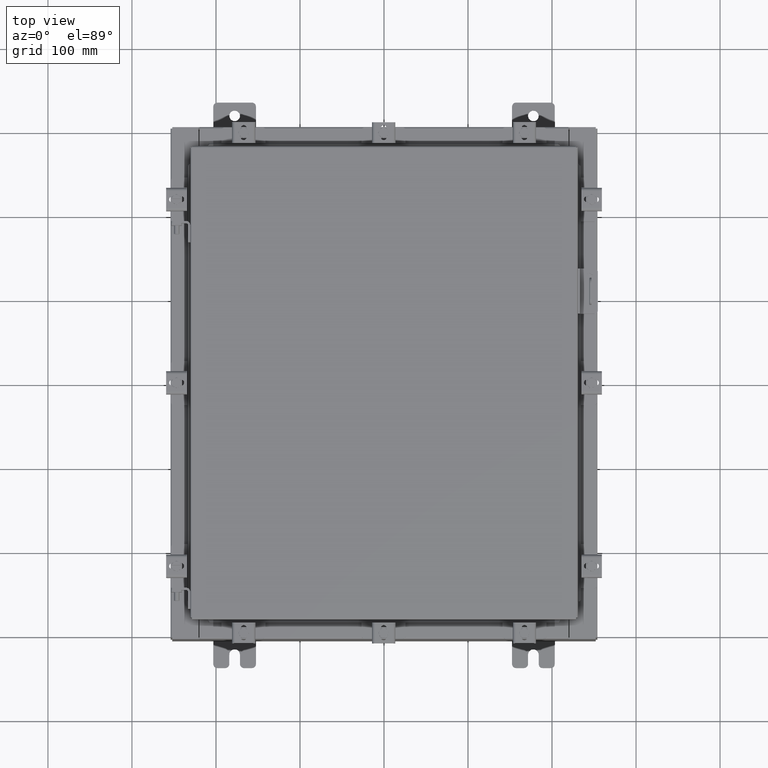
[diagram: clean part render]
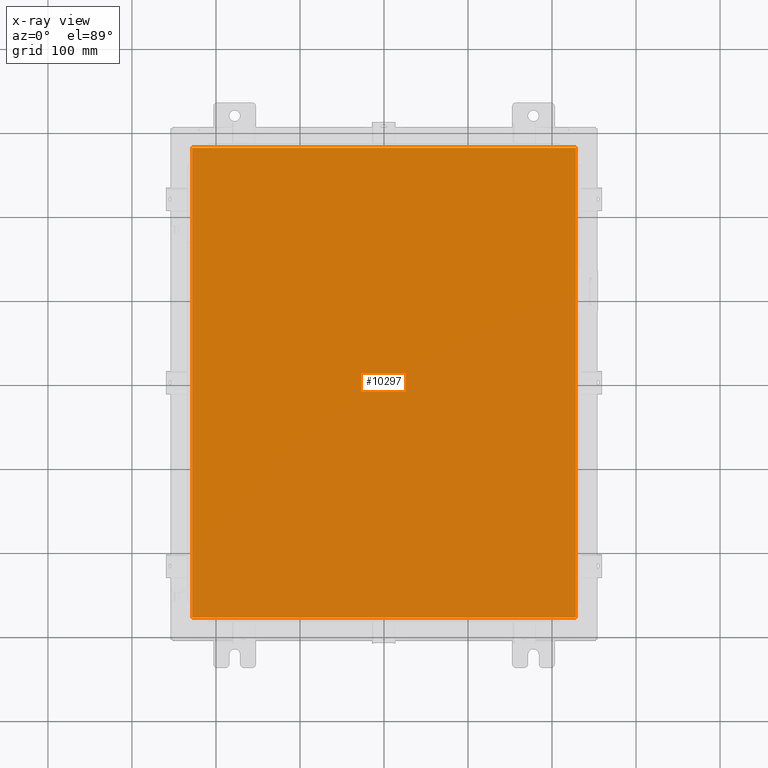
[diagram: x-ray — body ghosted, one internal face saturated and labeled with its STEP entity id]
A machine part, top view, then the same camera in x-ray: the body is ghosted and one INTERNAL B-rep face — a face not visible from any outside direction — is saturated and labeled: STEP entity #10297.
In plain terms, the highlighted planar face has unit normal (0, 0, -1).
Its self-contained STEP definition (entity closure, byte-faithful):
#111 = CARTESIAN_POINT ( 'NONE',  ( 8.990299999999999500, -11.00630000000000000, -0.07470000000000073800 ) ) ;
#797 = LINE ( 'NONE', #19437, #21811 ) ;
#1902 = CARTESIAN_POINT ( 'NONE',  ( -8.990299999999999500, -11.00630000000000100, -0.07470000000000019700 ) ) ;
#2981 = DIRECTION ( 'NONE',  ( 0.0000000000000000000, -1.000000000000000000, 0.0000000000000000000 ) ) ;
#3674 = DIRECTION ( 'NONE',  ( -1.000000000000000000, -0.0000000000000000000, -0.0000000000000000000 ) ) ;
#3933 = CARTESIAN_POINT ( 'NONE',  ( -8.990299999999997700, -11.00630000000000100, -0.07470000000000000300 ) ) ;
#4757 = VERTEX_POINT ( 'NONE', #10061 ) ;
#4787 = DIRECTION ( 'NONE',  ( 0.0000000000000000000, 0.0000000000000000000, -1.000000000000000000 ) ) ;
#5098 = VERTEX_POINT ( 'NONE', #3933 ) ;
#5983 = VECTOR ( 'NONE', #2981, 39.37007874015748100 ) ;
#6601 = EDGE_LOOP ( 'NONE', ( #14109, #20972, #7866, #15810 ) ) ;
#6924 = AXIS2_PLACEMENT_3D ( 'NONE', #15281, #4787, #17044 ) ;
#7148 = EDGE_CURVE ( 'NONE', #5098, #11055, #17495, .T. ) ;
#7697 = CARTESIAN_POINT ( 'NONE',  ( 8.990299999999999500, -11.00630000000000000, -0.07470000000000000300 ) ) ;
#7866 = ORIENTED_EDGE ( 'NONE', *, *, #13456, .F. ) ;
#8183 = VECTOR ( 'NONE', #10597, 39.37007874015748100 ) ;
#9068 = EDGE_CURVE ( 'NONE', #11055, #17428, #17638, .T. ) ;
#9732 = CARTESIAN_POINT ( 'NONE',  ( 8.990299999999997700, 11.00630000000000000, -0.07470000000000000300 ) ) ;
#10061 = CARTESIAN_POINT ( 'NONE',  ( -8.990299999999999500, 11.00630000000000000, -0.07470000000000000300 ) ) ;
#10297 = ADVANCED_FACE ( 'NONE', ( #15153 ), #16975, .T. ) ;
#10597 = DIRECTION ( 'NONE',  ( 1.000000000000000000, -0.0000000000000000000, -0.0000000000000000000 ) ) ;
#11055 = VERTEX_POINT ( 'NONE', #7697 ) ;
#11775 = CARTESIAN_POINT ( 'NONE',  ( -8.990299999999999500, 11.00630000000000100, -0.07470000000000019700 ) ) ;
#12302 = DIRECTION ( 'NONE',  ( 0.0000000000000000000, 1.000000000000000000, 0.0000000000000000000 ) ) ;
#12990 = VECTOR ( 'NONE', #12302, 39.37007874015748100 ) ;
#13456 = EDGE_CURVE ( 'NONE', #4757, #5098, #15295, .T. ) ;
#14109 = ORIENTED_EDGE ( 'NONE', *, *, #9068, .F. ) ;
#14213 = EDGE_CURVE ( 'NONE', #17428, #4757, #797, .T. ) ;
#15153 = FACE_OUTER_BOUND ( 'NONE', #6601, .T. ) ;
#15281 = CARTESIAN_POINT ( 'NONE',  ( 0.0000000000000000000, 0.0000000000000000000, -0.07470000000000000300 ) ) ;
#15295 = LINE ( 'NONE', #11775, #5983 ) ;
#15810 = ORIENTED_EDGE ( 'NONE', *, *, #14213, .F. ) ;
#16975 = PLANE ( 'NONE',  #6924 ) ;
#17044 = DIRECTION ( 'NONE',  ( -1.000000000000000000, 0.0000000000000000000, -0.0000000000000000000 ) ) ;
#17428 = VERTEX_POINT ( 'NONE', #9732 ) ;
#17495 = LINE ( 'NONE', #1902, #8183 ) ;
#17638 = LINE ( 'NONE', #111, #12990 ) ;
#19437 = CARTESIAN_POINT ( 'NONE',  ( 8.990299999999999500, 11.00630000000000000, -0.07470000000000019700 ) ) ;
#20972 = ORIENTED_EDGE ( 'NONE', *, *, #7148, .F. ) ;
#21811 = VECTOR ( 'NONE', #3674, 39.37007874015748100 ) ;